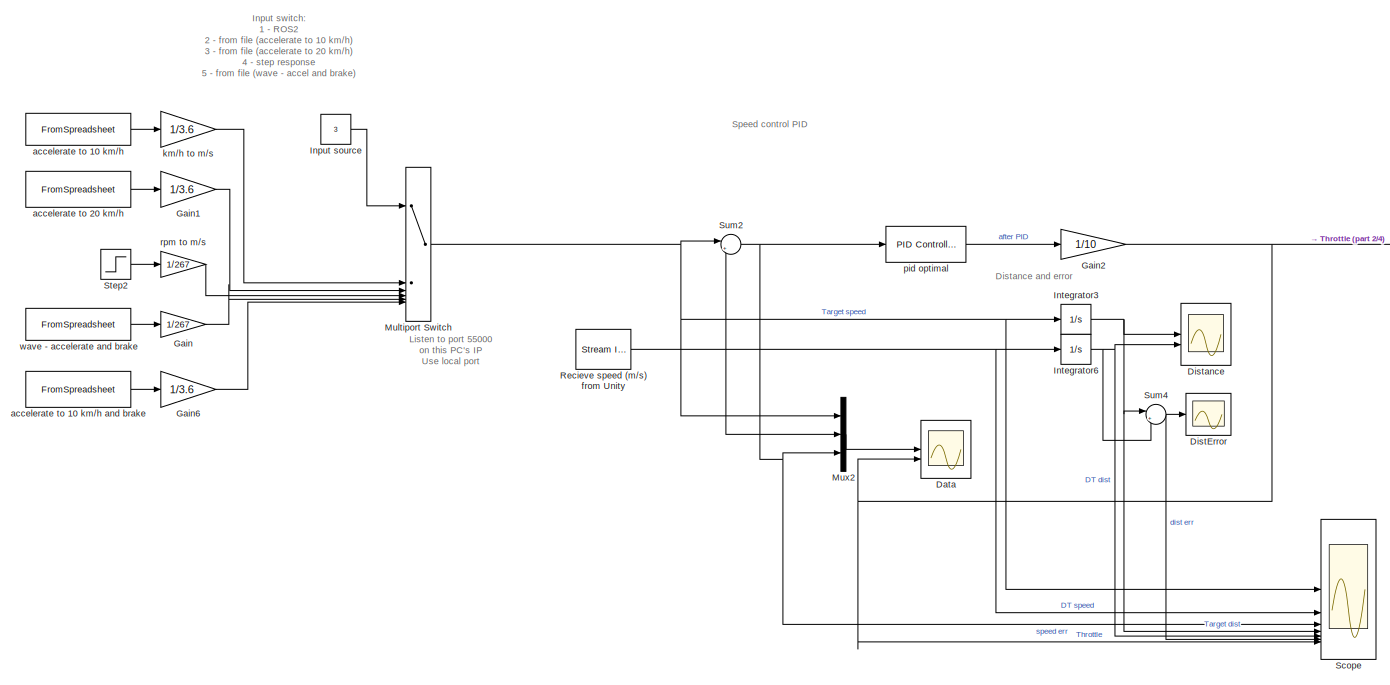
[diagram: root canvas - part 1/4, full width, top band]
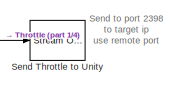
[diagram: root canvas - part 2/4, top right region]
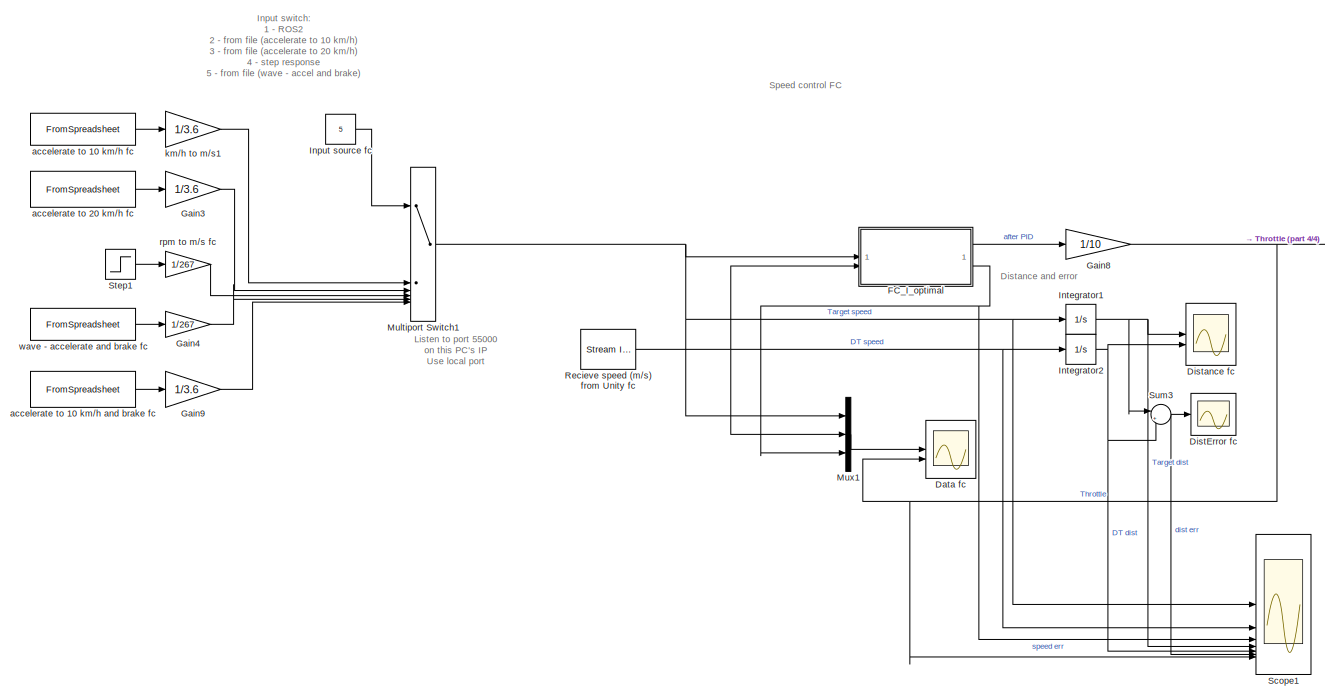
[diagram: root canvas - part 3/4, full width, bottom band]
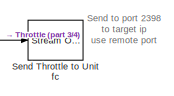
[diagram: root canvas - part 4/4, bottom right region]
MODEL slx_ece89ab8e0e6
KIND model
CONFIG AbsTol = auto
CONFIG EnableMultiTasking = off
CONFIG FixedStep = 0.001
CONFIG MaxStep = auto
CONFIG MinStep = auto
CONFIG RelTol = 1e-3
CONFIG SampleTimeConstraint = Unconstrained
CONFIG SolverName = FixedStepAuto
CONFIG StartTime = 0.0
CONFIG StopTime = 25
BLOCK [Scope] Data
  Commented = on
  Floating = off
  NumInputPorts = 2
  ScopeSpecificationString = Simulink.scopes.TimeScopeBlockCfg('CurrentConfiguration', extmgr.ConfigurationSet(extmgr.Configuration('Core','General UI',true),extmgr.Configuration('Core','Source UI',true),extmgr.Configuration('Sources','WiredSimulink',true,'DataLoggingVariableName','ScopeData1','DataLoggingDecimation','1'),extmgr.Configuration('Visuals','Time Domain',true,'SerializedDisplays',{struct('MinYLimReal','-0.97343','...<+2223ch>
BLOCK [Scope] Data fc
  Commented = on
  Floating = off
  NumInputPorts = 2
  ScopeSpecificationString = Simulink.scopes.TimeScopeBlockCfg('CurrentConfiguration', extmgr.ConfigurationSet(extmgr.Configuration('Core','General UI',true),extmgr.Configuration('Core','Source UI',true),extmgr.Configuration('Sources','WiredSimulink',true,'DataLoggingVariableName','ScopeData2','DataLoggingDecimation','1'),extmgr.Configuration('Visuals','Time Domain',true,'SerializedDisplays',{struct('MinYLimReal','-0.48284','...<+2207ch>
BLOCK [Scope] DistError
  Commented = on
  Floating = off
  NumInputPorts = 1
  ScopeSpecificationString = Simulink.scopes.TimeScopeBlockCfg('CurrentConfiguration', extmgr.ConfigurationSet(extmgr.Configuration('Core','General UI',true),extmgr.Configuration('Core','Source UI',true),extmgr.Configuration('Sources','WiredSimulink',true,'DataLoggingVariableName','ScopeData3'),extmgr.Configuration('Visuals','Time Domain',true,'SerializedDisplays',{struct('MinYLimReal','-0.05964','MaxYLimReal','0.18963','YLab...<+1421ch>
BLOCK [Scope] DistError fc
  Commented = on
  Floating = off
  NumInputPorts = 1
  ScopeSpecificationString = Simulink.scopes.TimeScopeBlockCfg('CurrentConfiguration', extmgr.ConfigurationSet(extmgr.Configuration('Core','General UI',true),extmgr.Configuration('Core','Source UI',true),extmgr.Configuration('Sources','WiredSimulink',true,'DataLoggingVariableName','ScopeData4'),extmgr.Configuration('Visuals','Time Domain',true,'SerializedDisplays',{struct('MinYLimReal','-0.05964','MaxYLimReal','0.18963','YLab...<+1421ch>
BLOCK [Scope] Distance
  Commented = on
  Floating = off
  NumInputPorts = 2
  ScopeSpecificationString = Simulink.scopes.TimeScopeBlockCfg('CurrentConfiguration', extmgr.ConfigurationSet(extmgr.Configuration('Core','General UI',true),extmgr.Configuration('Core','Source UI',true),extmgr.Configuration('Sources','WiredSimulink',true,'DataLoggingVariableName','ScopeData5'),extmgr.Configuration('Visuals','Time Domain',true,'SerializedDisplays',{struct('MinYLimReal','-9.4154','MaxYLimReal','84.73091','YLab...<+1463ch>
BLOCK [Scope] Distance fc
  Commented = on
  Floating = off
  NumInputPorts = 2
  ScopeSpecificationString = Simulink.scopes.TimeScopeBlockCfg('CurrentConfiguration', extmgr.ConfigurationSet(extmgr.Configuration('Core','General UI',true),extmgr.Configuration('Core','Source UI',true),extmgr.Configuration('Sources','WiredSimulink',true,'DataLoggingVariableName','ScopeData6'),extmgr.Configuration('Visuals','Time Domain',true,'SerializedDisplays',{struct('MinYLimReal','-9.4154','MaxYLimReal','84.73091','YLab...<+1463ch>
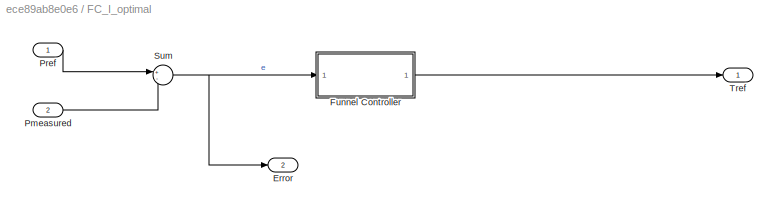
BLOCK [SubSystem] FC_I_optimal
BLOCK [Outport] FC_I_optimal/Error
  Port = 2
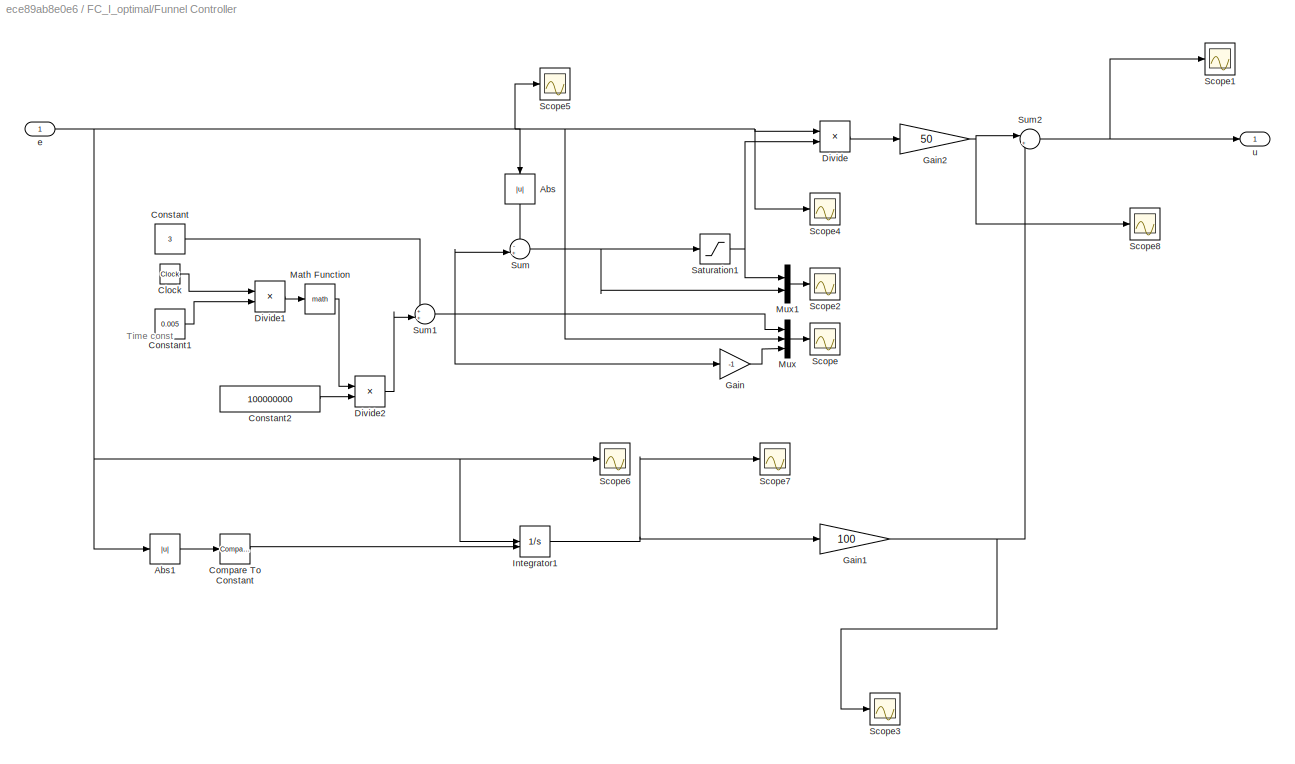
BLOCK [SubSystem] FC_I_optimal/Funnel Controller
BLOCK [Abs] FC_I_optimal/Funnel Controller/Abs
  NameLocation = left
  SaturateOnIntegerOverflow = off
BLOCK [Abs] FC_I_optimal/Funnel Controller/Abs1
  SaturateOnIntegerOverflow = off
BLOCK [Clock] FC_I_optimal/Funnel Controller/Clock
  Decimation = 1
BLOCK [Reference] FC_I_optimal/Funnel Controller/Compare To Constant  REF=simulink/Logic and Bit
Operations/Compare
To Constant
  SourceBlock = simulink/Logic and Bit\nOperations/Compare\nTo Constant
  SourceType = Compare To Constant
BLOCK [Constant] FC_I_optimal/Funnel Controller/Constant
  Value = 3
BLOCK [Constant] FC_I_optimal/Funnel Controller/Constant1
  Value = 0.005
BLOCK [Constant] FC_I_optimal/Funnel Controller/Constant2
  Value = 100000000
BLOCK [Product] FC_I_optimal/Funnel Controller/Divide
  Inputs = */
BLOCK [Product] FC_I_optimal/Funnel Controller/Divide1
  Inputs = */
BLOCK [Product] FC_I_optimal/Funnel Controller/Divide2
  Inputs = /*
BLOCK [Gain] FC_I_optimal/Funnel Controller/Gain
  Gain = -1
BLOCK [Gain] FC_I_optimal/Funnel Controller/Gain1
  Gain = 100
BLOCK [Gain] FC_I_optimal/Funnel Controller/Gain2
  Gain = 50
BLOCK [Integrator] FC_I_optimal/Funnel Controller/Integrator1
  ExternalReset = rising
BLOCK [Math] FC_I_optimal/Funnel Controller/Math Function
  SignedPower = on
BLOCK [Mux] FC_I_optimal/Funnel Controller/Mux
  DisplayOption = bar
  Inputs = 3
BLOCK [Mux] FC_I_optimal/Funnel Controller/Mux1
  DisplayOption = bar
  Inputs = 2
BLOCK [Saturate] FC_I_optimal/Funnel Controller/Saturation1
  LowerLimit = 2
  UpperLimit = inf
BLOCK [Scope] FC_I_optimal/Funnel Controller/Scope
  Floating = off
  NumInputPorts = 1
  ScopeSpecificationString = Simulink.scopes.TimeScopeBlockCfg('CurrentConfiguration', extmgr.ConfigurationSet(extmgr.Configuration('Core','General UI',true),extmgr.Configuration('Core','Source UI',true),extmgr.Configuration('Sources','WiredSimulink',true,'DataLoggingVariableName','ScopeData1','DataLoggingSaveFormat','StructureWithTime','DataLoggingDecimation','1','DataLoggingDecimateData',true),extmgr.Configuration('Visuals'...<+1741ch>
BLOCK [Scope] FC_I_optimal/Funnel Controller/Scope1
  Floating = off
  NumInputPorts = 1
  ScopeSpecificationString = Simulink.scopes.TimeScopeBlockCfg('CurrentConfiguration', extmgr.ConfigurationSet(extmgr.Configuration('Core','General UI',true),extmgr.Configuration('Core','Source UI',true),extmgr.Configuration('Sources','WiredSimulink',true,'DataLoggingVariableName','ScopeData2','DataLoggingSaveFormat','StructureWithTime','DataLoggingDecimation','1','DataLoggingDecimateData',true),extmgr.Configuration('Visuals'...<+1699ch>
BLOCK [Scope] FC_I_optimal/Funnel Controller/Scope2
  Floating = off
  NumInputPorts = 1
  ScopeSpecificationString = Simulink.scopes.TimeScopeBlockCfg('CurrentConfiguration', extmgr.ConfigurationSet(extmgr.Configuration('Core','General UI',true),extmgr.Configuration('Core','Source UI',true),extmgr.Configuration('Sources','WiredSimulink',true,'DataLoggingSaveFormat','StructureWithTime','DataLoggingDecimation','1','DataLoggingDecimateData',true),extmgr.Configuration('Visuals','Time Domain',true,'SerializedDisplays...<+1718ch>
BLOCK [Scope] FC_I_optimal/Funnel Controller/Scope3
  Floating = off
  NumInputPorts = 1
  ScopeSpecificationString = Simulink.scopes.TimeScopeBlockCfg('CurrentConfiguration', extmgr.ConfigurationSet(extmgr.Configuration('Core','General UI',true),extmgr.Configuration('Core','Source UI',true),extmgr.Configuration('Sources','WiredSimulink',true,'DataLoggingVariableName','ScopeData7','DataLoggingSaveFormat','StructureWithTime','DataLoggingDecimation','1','DataLoggingDecimateData',true),extmgr.Configuration('Visuals'...<+1707ch>
BLOCK [Scope] FC_I_optimal/Funnel Controller/Scope4
  Floating = off
  NumInputPorts = 1
  ScopeSpecificationString = Simulink.scopes.TimeScopeBlockCfg('CurrentConfiguration', extmgr.ConfigurationSet(extmgr.Configuration('Core','General UI',true),extmgr.Configuration('Core','Source UI',true),extmgr.Configuration('Sources','WiredSimulink',true,'DataLoggingVariableName','ScopeData4','DataLoggingSaveFormat','StructureWithTime','DataLoggingDecimation','1','DataLoggingDecimateData',true),extmgr.Configuration('Visuals'...<+1683ch>
BLOCK [Scope] FC_I_optimal/Funnel Controller/Scope5
  Floating = off
  NumInputPorts = 1
  ScopeSpecificationString = Simulink.scopes.TimeScopeBlockCfg('CurrentConfiguration', extmgr.ConfigurationSet(extmgr.Configuration('Core','General UI',true),extmgr.Configuration('Core','Source UI',true),extmgr.Configuration('Sources','WiredSimulink',true,'DataLoggingVariableName','ScopeData6','DataLoggingSaveFormat','StructureWithTime','DataLoggingDecimation','1','DataLoggingDecimateData',true),extmgr.Configuration('Visuals'...<+1683ch>
BLOCK [Scope] FC_I_optimal/Funnel Controller/Scope6
  Floating = off
  NumInputPorts = 1
  ScopeSpecificationString = C++SS(StrPVP('Location','[5, 48, 1367, 727]'),StrPVP('Open','off'),StrPVP('ZoomMode','yonly'),MxPVP('AxesTitles',54,'struct(''axes1'',''%<SignalLabel>'')'),MxPVP('ScopeGraphics',57,'struct(''FigureColor'',''[0.5 0.5 0.5]'',''AxesColor'',''[0 0 0]'',''AxesTickColor'',''[1 1 1]'',''LineColors'',''[1 1 0;1 0 1;0 1 1;1 0 0;0 1 0;0 0 1]'',''LineStyles'',''-|-|-|-|-|-'',''LineWidths'',''[0.5 0.5 0.5 0.5...<+341ch>
BLOCK [Scope] FC_I_optimal/Funnel Controller/Scope7
  Floating = off
  NumInputPorts = 1
  ScopeSpecificationString = Simulink.scopes.TimeScopeBlockCfg('CurrentConfiguration', extmgr.ConfigurationSet(extmgr.Configuration('Core','General UI',true),extmgr.Configuration('Core','Source UI',true),extmgr.Configuration('Sources','WiredSimulink',true,'DataLoggingVariableName','ScopeData9','DataLoggingSaveFormat','StructureWithTime','DataLoggingDecimation','1','DataLoggingDecimateData',true),extmgr.Configuration('Visuals'...<+1674ch>
BLOCK [Scope] FC_I_optimal/Funnel Controller/Scope8
  Floating = off
  NumInputPorts = 1
  ScopeSpecificationString = Simulink.scopes.TimeScopeBlockCfg('CurrentConfiguration', extmgr.ConfigurationSet(extmgr.Configuration('Core','General UI',true),extmgr.Configuration('Core','Source UI',true),extmgr.Configuration('Sources','WiredSimulink',true,'DataLoggingVariableName','ScopeData3','DataLoggingSaveFormat','StructureWithTime','DataLoggingDecimation','1','DataLoggingDecimateData',true),extmgr.Configuration('Visuals'...<+1695ch>
BLOCK [Sum] FC_I_optimal/Funnel Controller/Sum
  Inputs = -+|
BLOCK [Sum] FC_I_optimal/Funnel Controller/Sum1
  Inputs = ++|
BLOCK [Sum] FC_I_optimal/Funnel Controller/Sum2
  Inputs = |++
BLOCK [Inport] FC_I_optimal/Funnel Controller/e
BLOCK [Outport] FC_I_optimal/Funnel Controller/u
BLOCK [Inport] FC_I_optimal/Pmeasured
  Port = 2
BLOCK [Inport] FC_I_optimal/Pref
BLOCK [Sum] FC_I_optimal/Sum
  Inputs = +-
BLOCK [Outport] FC_I_optimal/Tref
BLOCK [Gain] Gain
  Commented = on
  Gain = 1/267
BLOCK [Gain] Gain1
  Commented = on
  Gain = 1/3.6
BLOCK [Gain] Gain2
  Commented = on
  Gain = 1/10
BLOCK [Gain] Gain3
  Gain = 1/3.6
BLOCK [Gain] Gain4
  Gain = 1/267
BLOCK [Gain] Gain6
  Commented = on
  Gain = 1/3.6
BLOCK [Gain] Gain8
  Gain = 1/10
BLOCK [Gain] Gain9
  Gain = 1/3.6
BLOCK [Constant] Input source
  Commented = on
  Value = 3
BLOCK [Constant] Input source fc
  Value = 5
BLOCK [Integrator] Integrator1
BLOCK [Integrator] Integrator2
BLOCK [Integrator] Integrator3
  Commented = on
BLOCK [Integrator] Integrator6
  Commented = on
BLOCK [MultiPortSwitch] Multiport Switch
  Commented = on
  InputSameDT = off
  Inputs = 6
  SaturateOnIntegerOverflow = off
BLOCK [MultiPortSwitch] Multiport Switch1
  InputSameDT = off
  Inputs = 6
  SaturateOnIntegerOverflow = off
BLOCK [Mux] Mux1
  DisplayOption = bar
  Inputs = 3
BLOCK [Mux] Mux2
  Commented = on
  DisplayOption = bar
  Inputs = 3
BLOCK [Reference] Recieve speed (m//s) from Unity  REF=sldrtlib/Stream Input
  AttributesFormatString = UDP Protocol [55000]
  Commented = on
  SourceBlock = sldrtlib/Stream Input
  SourceType = Simulink Desktop Real-Time Stream Input
BLOCK [Reference] Recieve speed (m//s) from Unity fc  REF=sldrtlib/Stream Input
  AttributesFormatString = UDP Protocol [55000]
  SourceBlock = sldrtlib/Stream Input
  SourceType = Simulink Desktop Real-Time Stream Input
BLOCK [Scope] Scope
  Commented = on
  Floating = off
  NumInputPorts = 7
  ScopeSpecificationString = Simulink.scopes.TimeScopeBlockCfg('CurrentConfiguration', extmgr.ConfigurationSet(extmgr.Configuration('Core','General UI',true),extmgr.Configuration('Core','Source UI',true),extmgr.Configuration('Sources','WiredSimulink',true,'DataLoggingVariableName','ScopeData7','DataLogging',true),extmgr.Configuration('Visuals','Time Domain',true,'SerializedDisplays',{struct('MinYLimReal','-13.74699','MaxYLimR...<+1705ch>
BLOCK [Scope] Scope1
  Floating = off
  NumInputPorts = 7
  ScopeSpecificationString = Simulink.scopes.TimeScopeBlockCfg('CurrentConfiguration', extmgr.ConfigurationSet(extmgr.Configuration('Core','General UI',true),extmgr.Configuration('Core','Source UI',true),extmgr.Configuration('Sources','WiredSimulink',true,'DataLoggingVariableName','ScopeData8','DataLogging',true),extmgr.Configuration('Visuals','Time Domain',true,'SerializedDisplays',{struct('MinYLimReal','-2.74065','MaxYLimRe...<+1693ch>
BLOCK [Reference] Send Throttle to Unit fc  REF=sldrtlib/Stream Output
  AttributesFormatString = UDP Protocol [2399]
  SourceBlock = sldrtlib/Stream Output
  SourceType = Simulink Desktop Real-Time Stream Output
BLOCK [Reference] Send Throttle to Unity  REF=sldrtlib/Stream Output
  AttributesFormatString = UDP Protocol [2399]
  Commented = on
  SourceBlock = sldrtlib/Stream Output
  SourceType = Simulink Desktop Real-Time Stream Output
BLOCK [Step] Step1
  After = 1100
  SampleTime = 0
BLOCK [Step] Step2
  After = 1100
  Commented = on
  SampleTime = 0
BLOCK [Sum] Sum2
  Commented = on
  Inputs = |+-
BLOCK [Sum] Sum3
  Inputs = |+-
BLOCK [Sum] Sum4
  Commented = on
  Inputs = |+-
BLOCK [FromSpreadsheet] accelerate to 10 km//h
  Commented = on
  ExtrapolationAfterLastDataPoint = Hold last value
  ExtrapolationBeforeFirstDataPoint = Hold first value
  FileName = VEL_10_input.xlsx
  Range = A1:B56
  SheetName = Лист1
BLOCK [FromSpreadsheet] accelerate to 10 km//h and brake
  Commented = on
  ExtrapolationAfterLastDataPoint = Hold last value
  ExtrapolationBeforeFirstDataPoint = Hold first value
  FileName = VEL_10_2_input.xlsx
  Range = A1:B36
  SheetName = Лист1
BLOCK [FromSpreadsheet] accelerate to 10 km//h and brake fc
  ExtrapolationAfterLastDataPoint = Hold last value
  ExtrapolationBeforeFirstDataPoint = Hold first value
  FileName = VEL_10_2_input.xlsx
  Range = A1:B36
  SheetName = Лист1
BLOCK [FromSpreadsheet] accelerate to 10 km//h fc
  ExtrapolationAfterLastDataPoint = Hold last value
  ExtrapolationBeforeFirstDataPoint = Hold first value
  FileName = VEL_10_input.xlsx
  Range = A1:B56
  SheetName = Лист1
BLOCK [FromSpreadsheet] accelerate to 20 km//h
  Commented = on
  ExtrapolationAfterLastDataPoint = Hold last value
  ExtrapolationBeforeFirstDataPoint = Hold first value
  FileName = VEL_20_input.xlsx
  Range = A1:B36
  SheetName = Лист1
BLOCK [FromSpreadsheet] accelerate to 20 km//h fc
  ExtrapolationAfterLastDataPoint = Hold last value
  ExtrapolationBeforeFirstDataPoint = Hold first value
  FileName = VEL_20_input.xlsx
  Range = A1:B36
  SheetName = Лист1
BLOCK [Gain] km//h to m//s
  Commented = on
  Gain = 1/3.6
BLOCK [Gain] km//h to m//s1
  Gain = 1/3.6
BLOCK [Reference] pid optimal  REF=slpidlib/PID Controller
  Commented = on
  SourceBlock = slpidlib/PID Controller
  SourceType = PID 1dof
BLOCK [Gain] rpm to m//s
  Commented = on
  Gain = 1/267
BLOCK [Gain] rpm to m//s fc
  Gain = 1/267
BLOCK [FromSpreadsheet] wave - accelerate and brake
  Commented = on
  ExtrapolationAfterLastDataPoint = Hold last value
  ExtrapolationBeforeFirstDataPoint = Hold first value
  FileName = RPM_input.xlsx
  Range = A1:B4401
  SheetName = Лист1
BLOCK [FromSpreadsheet] wave - accelerate and brake fc
  ExtrapolationAfterLastDataPoint = Hold last value
  ExtrapolationBeforeFirstDataPoint = Hold first value
  FileName = RPM_input.xlsx
  Range = A1:B4401
  SheetName = Лист1
ANNOTATION (root): Input switch: 1 - ROS2 2 - from file (accelerate to 10 km/h) 3 - from file (accelerate to 20 km/h) 4 - step response 5 - from file (wave - accel and brake) 6 - from file (accelerate to 10 km/h and brake)
ANNOTATION (root): Speed control FC
ANNOTATION (root): Speed control PID
ANNOTATION (root): Distance and error
ANNOTATION (root): Listen to port 55000 on this PC's IP Use local port
ANNOTATION (root): Send to port 2398 to target ip use remote port
ANNOTATION FC_I_optimal/Funnel Controller: Time const
LINE FC_I_optimal/Funnel Controller/Abs1:1 -> FC_I_optimal/Funnel Controller/Compare To Constant:1
LINE FC_I_optimal/Funnel Controller/Abs:1 -> FC_I_optimal/Funnel Controller/Sum:1
LINE FC_I_optimal/Funnel Controller/Clock:1 -> FC_I_optimal/Funnel Controller/Divide1:1
LINE FC_I_optimal/Funnel Controller/Compare To Constant:1 -> FC_I_optimal/Funnel Controller/Integrator1:2
LINE FC_I_optimal/Funnel Controller/Constant1:1 -> FC_I_optimal/Funnel Controller/Divide1:2
LINE FC_I_optimal/Funnel Controller/Constant2:1 -> FC_I_optimal/Funnel Controller/Divide2:2
LINE FC_I_optimal/Funnel Controller/Constant:1 -> FC_I_optimal/Funnel Controller/Sum1:1
LINE FC_I_optimal/Funnel Controller/Divide1:1 -> FC_I_optimal/Funnel Controller/Math Function:1
LINE FC_I_optimal/Funnel Controller/Divide2:1 -> FC_I_optimal/Funnel Controller/Sum1:2
LINE FC_I_optimal/Funnel Controller/Divide:1 -> FC_I_optimal/Funnel Controller/Gain2:1
NET FC_I_optimal/Funnel Controller/Gain1:1 -> FC_I_optimal/Funnel Controller/Scope3:1, FC_I_optimal/Funnel Controller/Sum2:2
NET FC_I_optimal/Funnel Controller/Gain2:1 -> FC_I_optimal/Funnel Controller/Scope8:1, FC_I_optimal/Funnel Controller/Sum2:1
LINE FC_I_optimal/Funnel Controller/Gain:1 -> FC_I_optimal/Funnel Controller/Mux:3
NET FC_I_optimal/Funnel Controller/Integrator1:1 -> FC_I_optimal/Funnel Controller/Gain1:1, FC_I_optimal/Funnel Controller/Scope7:1
LINE FC_I_optimal/Funnel Controller/Math Function:1 -> FC_I_optimal/Funnel Controller/Divide2:1
LINE FC_I_optimal/Funnel Controller/Mux1:1 -> FC_I_optimal/Funnel Controller/Scope2:1
LINE FC_I_optimal/Funnel Controller/Mux:1 -> FC_I_optimal/Funnel Controller/Scope:1
NET FC_I_optimal/Funnel Controller/Saturation1:1 -> FC_I_optimal/Funnel Controller/Divide:2, FC_I_optimal/Funnel Controller/Mux1:1
NET FC_I_optimal/Funnel Controller/Sum1:1 -> FC_I_optimal/Funnel Controller/Gain:1, FC_I_optimal/Funnel Controller/Mux:1, FC_I_optimal/Funnel Controller/Sum:2
NET FC_I_optimal/Funnel Controller/Sum2:1 -> FC_I_optimal/Funnel Controller/Scope1:1, FC_I_optimal/Funnel Controller/u:1
NET FC_I_optimal/Funnel Controller/Sum:1 -> FC_I_optimal/Funnel Controller/Mux1:2, FC_I_optimal/Funnel Controller/Saturation1:1
NET FC_I_optimal/Funnel Controller/e:1 -> FC_I_optimal/Funnel Controller/Abs1:1, FC_I_optimal/Funnel Controller/Abs:1, FC_I_optimal/Funnel Controller/Divide:1, FC_I_optimal/Funnel Controller/Integrator1:1, FC_I_optimal/Funnel Controller/Mux:2, FC_I_optimal/Funnel Controller/Scope4:1, FC_I_optimal/Funnel Controller/Scope5:1, FC_I_optimal/Funnel Controller/Scope6:1
LINE FC_I_optimal/Funnel Controller:1 -> FC_I_optimal/Tref:1
LINE FC_I_optimal/Pmeasured:1 -> FC_I_optimal/Sum:2
LINE FC_I_optimal/Pref:1 -> FC_I_optimal/Sum:1
NET FC_I_optimal/Sum:1 -> FC_I_optimal/Error:1, FC_I_optimal/Funnel Controller:1
LINE FC_I_optimal:1 -> Gain8:1
NET FC_I_optimal:2 -> Mux1:3, Scope1:3
LINE Gain1:1 -> Multiport Switch:4
NET Gain2:1 -> Data:2, Scope:7, Send Throttle to Unity:1
LINE Gain3:1 -> Multiport Switch1:4
LINE Gain4:1 -> Multiport Switch1:6
LINE Gain6:1 -> Multiport Switch:7
NET Gain8:1 -> Data fc:2, Scope1:7, Send Throttle to Unit fc:1
LINE Gain9:1 -> Multiport Switch1:7
LINE Gain:1 -> Multiport Switch:6
LINE Input source fc:1 -> Multiport Switch1:1
LINE Input source:1 -> Multiport Switch:1
NET Integrator1:1 -> Distance fc:1, Scope1:4, Sum3:1
NET Integrator2:1 -> Distance fc:2, Scope1:5, Sum3:2
NET Integrator3:1 -> Distance:1, Scope:4, Sum4:1
NET Integrator6:1 -> Distance:2, Scope:5, Sum4:2
NET Multiport Switch1:1 -> FC_I_optimal:1, Integrator1:1, Mux1:1, Scope1:1
NET Multiport Switch:1 -> Integrator3:1, Mux2:1, Scope:1, Sum2:1
LINE Mux1:1 -> Data fc:1
LINE Mux2:1 -> Data:1
NET Recieve speed (m//s) from Unity fc:1 -> FC_I_optimal:2, Integrator2:1, Mux1:2, Scope1:2
NET Recieve speed (m//s) from Unity:1 -> Integrator6:1, Mux2:2, Scope:2, Sum2:2
LINE Step1:1 -> rpm to m//s fc:1
LINE Step2:1 -> rpm to m//s:1
NET Sum2:1 -> Mux2:3, Scope:3, pid optimal:1
NET Sum3:1 -> DistError fc:1, Scope1:6
NET Sum4:1 -> DistError:1, Scope:6
LINE accelerate to 10 km//h and brake fc:1 -> Gain9:1
LINE accelerate to 10 km//h and brake:1 -> Gain6:1
LINE accelerate to 10 km//h fc:1 -> km//h to m//s1:1
LINE accelerate to 10 km//h:1 -> km//h to m//s:1
LINE accelerate to 20 km//h fc:1 -> Gain3:1
LINE accelerate to 20 km//h:1 -> Gain1:1
LINE km//h to m//s1:1 -> Multiport Switch1:3
LINE km//h to m//s:1 -> Multiport Switch:3
LINE pid optimal:1 -> Gain2:1
LINE rpm to m//s fc:1 -> Multiport Switch1:5
LINE rpm to m//s:1 -> Multiport Switch:5
LINE wave - accelerate and brake fc:1 -> Gain4:1
LINE wave - accelerate and brake:1 -> Gain:1
note: NET lines group one-source signal fan-out (src -> all destinations, sorted); 1:1 wires keep LINE
